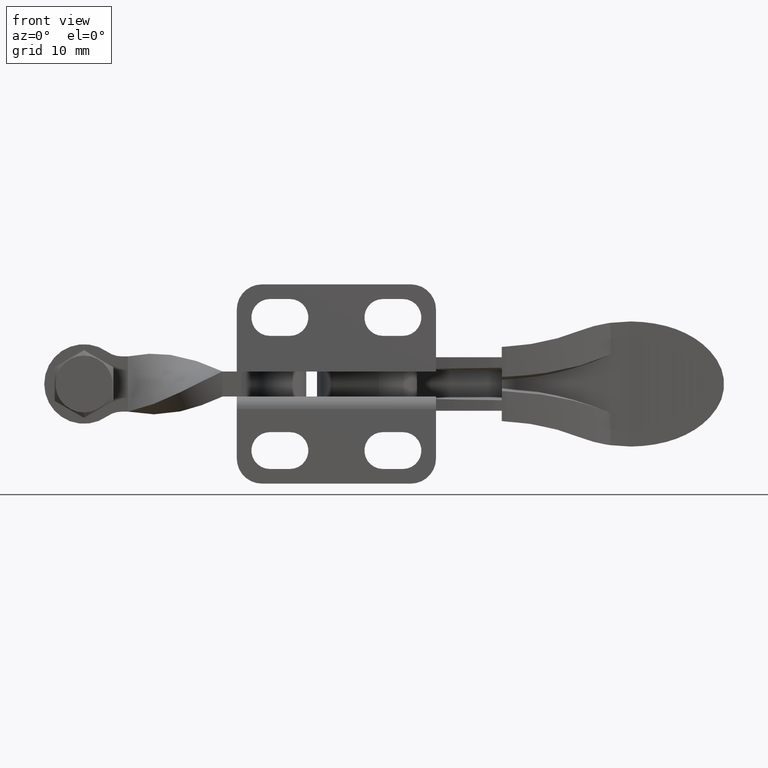
[diagram: clean part render]
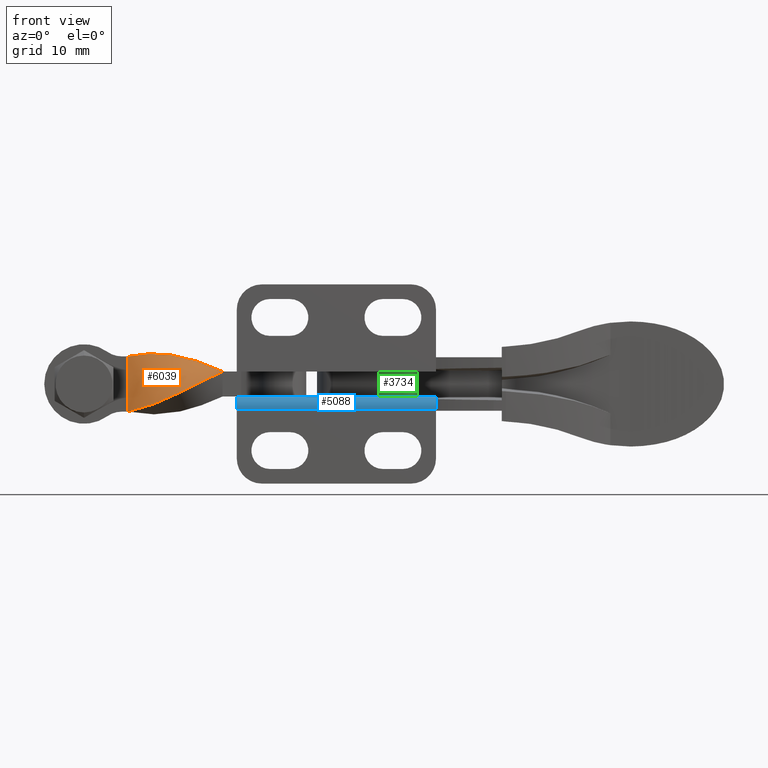
[diagram: same view with three faces highlighted in distinct colors, each labeled with its STEP entity id]
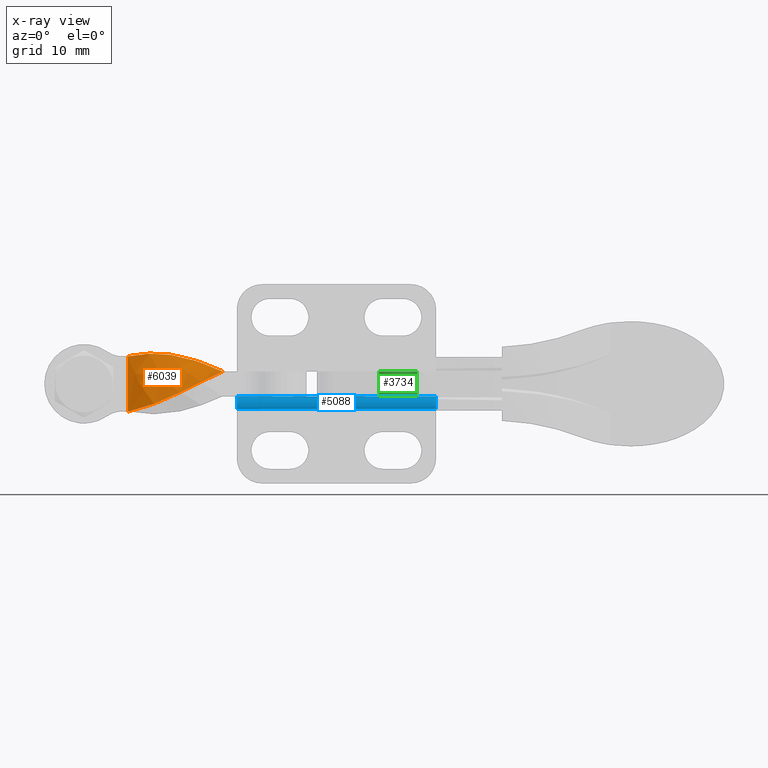
[diagram: x-ray of the same camera — body ghosted, the three highlighted faces saturated]
A machine part, front view with three faces highlighted in distinct colors.
The next image is the same camera in x-ray (body ghosted, the three faces saturated) — at least one of them is partly hidden behind the body in this view.
Their STEP definitions:

[orange] entity #6039 — the highlighted face is a freeform B-spline surface patch.
#232 = B_SPLINE_CURVE_WITH_KNOTS ( 'NONE', 3,
 ( #1954, #1953, #1930, #1920, #1907, #1896, #1874, #1863, #1860, #1841, #1825, #1816 ),
 .UNSPECIFIED., .F., .F.,
 ( 4, 2, 2, 2, 2, 4 ),
 ( 1.176107655477003300E-017, 0.003137570881357479300, 0.004706356322036214600, 0.006275141762714949100, 0.009412712644072415400, 0.01255028352542988300 ),
 .UNSPECIFIED. ) ;
#615 = ORIENTED_EDGE ( 'NONE', *, *, #1675, .T. ) ;
#633 = VERTEX_POINT ( 'NONE', #5395 ) ;
#1664 = DIRECTION ( 'NONE',  ( 1.844089696524623200E-014, -3.069766663088557800E-014, 1.000000000000000000 ) ) ;
#1675 = EDGE_CURVE ( 'NONE', #2549, #8863, #3712, .T. ) ;
#1706 = CARTESIAN_POINT ( 'NONE',  ( -13.00000000000120400, 9.650000000000851200, -1.500000000000020400 ) ) ;
#1766 = VECTOR ( 'NONE', #5197, 1000.000000000000000 ) ;
#1816 = CARTESIAN_POINT ( 'NONE',  ( -13.00000000000118800, 9.650000000000803300, 1.800000000000001600 ) ) ;
#1825 = CARTESIAN_POINT ( 'NONE',  ( -12.05267482808072000, 10.08456625678568300, 1.997525998484649600 ) ) ;
#1841 = CARTESIAN_POINT ( 'NONE',  ( -11.11257841848375700, 10.55394567521773100, 2.104504810054276000 ) ) ;
#1842 = EDGE_LOOP ( 'NONE', ( #615, #5633, #6051, #4313 ) ) ;
#1860 = CARTESIAN_POINT ( 'NONE',  ( -9.219873523480377000, 11.50738911361413300, 2.135939048183236500 ) ) ;
#1863 = CARTESIAN_POINT ( 'NONE',  ( -8.279107791124689100, 11.98545677756314400, 2.057954441462232600 ) ) ;
#1874 = CARTESIAN_POINT ( 'NONE',  ( -6.859475223465255000, 12.65390531683798300, 1.805627150240208100 ) ) ;
#1896 = CARTESIAN_POINT ( 'NONE',  ( -6.387182566774409800, 12.86793346201221600, 1.699669779431467500 ) ) ;
#1907 = CARTESIAN_POINT ( 'NONE',  ( -5.449132271109411900, 13.26909913063780900, 1.449494394320451700 ) ) ;
#1920 = CARTESIAN_POINT ( 'NONE',  ( -4.982074815956774900, 13.45655558814708600, 1.305018109014179300 ) ) ;
#1930 = CARTESIAN_POINT ( 'NONE',  ( -3.581011106703307200, 13.97127823435714200, 0.8218207696098560600 ) ) ;
#1953 = CARTESIAN_POINT ( 'NONE',  ( -2.647264359961663400, 14.25248668137275100, 0.4345383605299235100 ) ) ;
#1954 = CARTESIAN_POINT ( 'NONE',  ( -1.700000000001224800, 14.45000000000086600, 1.517883041479706200E-014 ) ) ;
#1987 = VERTEX_POINT ( 'NONE', #2971 ) ;
#2549 = VERTEX_POINT ( 'NONE', #4084 ) ;
#2923 = EDGE_CURVE ( 'NONE', #8863, #633, #3691, .T. ) ;
#2971 = CARTESIAN_POINT ( 'NONE',  ( -13.00000000000118800, 9.650000000000803300, 1.800000000000001600 ) ) ;
#3632 = FACE_OUTER_BOUND ( 'NONE', #1842, .T. ) ;
#3691 = LINE ( 'NONE', #4893, #1766 ) ;
#3712 = B_SPLINE_CURVE_WITH_KNOTS ( 'NONE', 3,
 ( #6630, #5962, #5161, #6696, #6750, #7238, #7288, #7351, #7383, #7408, #7858, #7910 ),
 .UNSPECIFIED., .F., .F.,
 ( 4, 2, 2, 2, 2, 4 ),
 ( 2.485260050167914900E-017, 0.003137742146331533500, 0.004706613219497285000, 0.006275484292663037500, 0.009413226438994537100, 0.01255096858532604000 ),
 .UNSPECIFIED. ) ;
#4084 = CARTESIAN_POINT ( 'NONE',  ( -13.00000000000124900, 9.650000000000918700, -4.800000000000015800 ) ) ;
#4313 = ORIENTED_EDGE ( 'NONE', *, *, #6325, .F. ) ;
#4331 = EDGE_CURVE ( 'NONE', #633, #1987, #232, .T. ) ;
#4605 = CARTESIAN_POINT ( 'NONE',  ( -1.700000000001224800, 14.51666000000089000, 4.336808689942017700E-016 ) ) ;
#4612 = CARTESIAN_POINT ( 'NONE',  ( -1.700000000001224800, 14.49444000000088900, 4.336808689942017700E-016 ) ) ;
#4627 = CARTESIAN_POINT ( 'NONE',  ( -1.700000000001224800, 14.47222000000088800, 4.336808689942017700E-016 ) ) ;
#4629 = CARTESIAN_POINT ( 'NONE',  ( -1.700000000001224800, 14.45000000000088900, 4.336808689942017700E-016 ) ) ;
#4648 = CARTESIAN_POINT ( 'NONE',  ( -1.700000000001214300, 12.25000000000087000, 2.168404344971008900E-015 ) ) ;
#4662 = CARTESIAN_POINT ( 'NONE',  ( -1.700000000001221400, 10.05000000000087100, 5.637851296924623100E-015 ) ) ;
#4678 = CARTESIAN_POINT ( 'NONE',  ( -1.700000000001221400, 7.850000000000863000, 1.301042606982605300E-015 ) ) ;
#4684 = CARTESIAN_POINT ( 'NONE',  ( -1.700000000001221400, 7.828000000000861800, 1.301042606982605300E-015 ) ) ;
#4685 = CARTESIAN_POINT ( 'NONE',  ( -1.700000000001221400, 7.806000000000862500, 2.168404344971008900E-015 ) ) ;
#4694 = CARTESIAN_POINT ( 'NONE',  ( -1.700000000001221400, 7.784000000000863100, 2.168404344971008900E-015 ) ) ;
#4695 = CARTESIAN_POINT ( 'NONE',  ( -3.313914808615609600, 14.18014405784668200, 0.7553056786699682300 ) ) ;
#4707 = CARTESIAN_POINT ( 'NONE',  ( -3.313918309053011300, 14.15792328882133500, 0.7503223136998723500 ) ) ;
#4714 = CARTESIAN_POINT ( 'NONE',  ( -3.313921809490413000, 14.13570251979598800, 0.7453389487297756900 ) ) ;
#4716 = CARTESIAN_POINT ( 'NONE',  ( -3.313925309927814800, 14.11348175077064000, 0.7403555837596798000 ) ) ;
#4728 = CARTESIAN_POINT ( 'NONE',  ( -3.314271887888428300, 11.91340560964713200, 0.2469531114729205900 ) ) ;
#4729 = CARTESIAN_POINT ( 'NONE',  ( -3.314271887900548800, 9.713401730516345400, -0.2469478241585777200 ) ) ;
#4749 = CARTESIAN_POINT ( 'NONE',  ( -3.313925309929183400, 7.513470121326568200, -0.7403502976457425600 ) ) ;
#4759 = CARTESIAN_POINT ( 'NONE',  ( -3.313921844149470000, 7.491470805234669700, -0.7452843223806140400 ) ) ;
#4770 = CARTESIAN_POINT ( 'NONE',  ( -3.313918378369756600, 7.469471489142771100, -0.7502183471154856300 ) ) ;
#4787 = CARTESIAN_POINT ( 'NONE',  ( -3.313914912590042700, 7.447472173050874400, -0.7551523718503570000 ) ) ;
#4823 = CARTESIAN_POINT ( 'NONE',  ( -6.273715632824323800, 13.07744054786865300, 1.918032490980222200 ) ) ;
#4830 = CARTESIAN_POINT ( 'NONE',  ( -6.273715535448965300, 13.05844025288178900, 1.903939237003659600 ) ) ;
#4832 = CARTESIAN_POINT ( 'NONE',  ( -6.273715438073607800, 13.03943995789492600, 1.889845983027097100 ) ) ;
#4845 = CARTESIAN_POINT ( 'NONE',  ( -6.273715340698250200, 13.02043966290806200, 1.875752729050533600 ) ) ;
#4846 = CARTESIAN_POINT ( 'NONE',  ( -6.273705699573641300, 11.13922233747606700, 0.4803810482027133200 ) ) ;
#4858 = CARTESIAN_POINT ( 'NONE',  ( -6.273705699573469900, 9.257949839676449200, -0.9150479557342291500 ) ) ;
#4867 = CARTESIAN_POINT ( 'NONE',  ( -6.273715340699113500, 7.376746521680788100, -2.310437664855856400 ) ) ;
#4881 = CARTESIAN_POINT ( 'NONE',  ( -6.273715437110369400, 7.357934488500831100, -2.324391561947072700 ) ) ;
#4882 = CARTESIAN_POINT ( 'NONE',  ( -6.273715533521625300, 7.339122455320874900, -2.338345459038289500 ) ) ;
#4893 = CARTESIAN_POINT ( 'NONE',  ( -1.700000000001228300, 11.15000000000084200, 9.107298248878237200E-015 ) ) ;
#4898 = CARTESIAN_POINT ( 'NONE',  ( -6.273715629932881100, 7.320310422140917900, -2.352299356129506200 ) ) ;
#4908 = CARTESIAN_POINT ( 'NONE',  ( -10.04051864744457300, 11.11114871594361000, 2.312099175699223500 ) ) ;
#4910 = CARTESIAN_POINT ( 'NONE',  ( -10.04052022430528800, 11.10200874800710700, 2.291010883411657200 ) ) ;
#4917 = CARTESIAN_POINT ( 'NONE',  ( -10.04052180116600300, 11.09286878007060500, 2.269922591124090800 ) ) ;
#4920 = CARTESIAN_POINT ( 'NONE',  ( -10.04052337802671800, 11.08372881213410100, 2.248834298836524400 ) ) ;
#4928 = CARTESIAN_POINT ( 'NONE',  ( -10.04067950284999900, 10.17878149168828500, 0.1608845673942804500 ) ) ;
#4938 = CARTESIAN_POINT ( 'NONE',  ( -10.04067950285480000, 9.274058688064114300, -1.927032650106235100 ) ) ;
#4939 = CARTESIAN_POINT ( 'NONE',  ( -10.04052337802408200, 8.369111377835448500, -4.014917283246864700 ) ) ;
#4952 = CARTESIAN_POINT ( 'NONE',  ( -10.04052181677577400, 8.360061904733161200, -4.035796129578271200 ) ) ;
#4953 = CARTESIAN_POINT ( 'NONE',  ( -10.04052025552746700, 8.351012431630874000, -4.056674975909678500 ) ) ;
#4965 = CARTESIAN_POINT ( 'NONE',  ( -10.04051869427915900, 8.341962958528588600, -4.077553822241084100 ) ) ;
#4974 = CARTESIAN_POINT ( 'NONE',  ( -12.19298827668889600, 10.02767826041201700, 2.034929297083579900 ) ) ;
#4975 = CARTESIAN_POINT ( 'NONE',  ( -12.19298652635236700, 10.02518641020342800, 2.012709681622170300 ) ) ;
#4986 = CARTESIAN_POINT ( 'NONE',  ( -12.19298477601583900, 10.02269455999484300, 1.990490066160760500 ) ) ;
#4987 = CARTESIAN_POINT ( 'NONE',  ( -12.19298302567931100, 10.02020270978625600, 1.968270450699350900 ) ) ;
#5002 = CARTESIAN_POINT ( 'NONE',  ( -12.19280972503290400, 9.773484867351903900, -0.2316914761728993100 ) ) ;
#5011 = CARTESIAN_POINT ( 'NONE',  ( -12.19280972502755700, 9.526517776437978900, -2.431689536537262600 ) ) ;
#5022 = CARTESIAN_POINT ( 'NONE',  ( -12.19298302568221000, 9.279799933445708900, -4.631723734180219800 ) ) ;
#5023 = CARTESIAN_POINT ( 'NONE',  ( -12.19298475868875700, 9.277332755015786200, -4.653724076156649400 ) ) ;
#5033 = CARTESIAN_POINT ( 'NONE',  ( -12.19298649169530300, 9.274865576585863600, -4.675724418133079000 ) ) ;
#5041 = CARTESIAN_POINT ( 'NONE',  ( -12.19298822470185000, 9.272398398155941000, -4.697724760109508700 ) ) ;
#5043 = CARTESIAN_POINT ( 'NONE',  ( -13.00000000000123800, 9.650000000000853000, 1.866660000000008200 ) ) ;
#5054 = CARTESIAN_POINT ( 'NONE',  ( -13.00000000000123800, 9.650000000000853000, 1.844440000000007400 ) ) ;
#5064 = CARTESIAN_POINT ( 'NONE',  ( -13.00000000000123800, 9.650000000000853000, 1.822220000000007700 ) ) ;
#5072 = CARTESIAN_POINT ( 'NONE',  ( -13.00000000000123800, 9.650000000000853000, 1.800000000000006900 ) ) ;
#5085 = CARTESIAN_POINT ( 'NONE',  ( -13.00000000000123300, 9.650000000000863700, -0.4000000000000119000 ) ) ;
#5086 = CARTESIAN_POINT ( 'NONE',  ( -13.00000000000123100, 9.650000000000869000, -2.600000000000010300 ) ) ;
#5092 = CARTESIAN_POINT ( 'NONE',  ( -13.00000000000123300, 9.650000000000877900, -4.800000000000021100 ) ) ;
#5108 = CARTESIAN_POINT ( 'NONE',  ( -13.00000000000123300, 9.650000000000879700, -4.822000000000020500 ) ) ;
#5119 = CARTESIAN_POINT ( 'NONE',  ( -13.00000000000123300, 9.650000000000879700, -4.866000000000021000 ) ) ;
#5161 = CARTESIAN_POINT ( 'NONE',  ( -11.11935428694011600, 8.827254336849662800, -4.321011146179677600 ) ) ;
#5197 = DIRECTION ( 'NONE',  ( -1.801006175791694200E-014, 1.000000000000000000, 6.383782391594650100E-015 ) ) ;
#5237 = CARTESIAN_POINT ( 'NONE',  ( -13.00000000000123300, 9.650000000000879700, -4.844000000000020700 ) ) ;
#5395 = CARTESIAN_POINT ( 'NONE',  ( -1.700000000001224800, 14.45000000000086600, 1.517883041479706200E-014 ) ) ;
#5633 = ORIENTED_EDGE ( 'NONE', *, *, #2923, .T. ) ;
#5764 = B_SPLINE_SURFACE_WITH_KNOTS ( 'NONE', 3, 3, ( 
 ( #5119, #5237, #5108, #5092, #5086, #5085, #5072, #5064, #5054, #5043 ),
 ( #5041, #5033, #5023, #5022, #5011, #5002, #4987, #4986, #4975, #4974 ),
 ( #4965, #4953, #4952, #4939, #4938, #4928, #4920, #4917, #4910, #4908 ),
 ( #4898, #4882, #4881, #4867, #4858, #4846, #4845, #4832, #4830, #4823 ),
 ( #4787, #4770, #4759, #4749, #4729, #4728, #4716, #4714, #4707, #4695 ),
 ( #4694, #4685, #4684, #4678, #4662, #4648, #4629, #4627, #4612, #4605 ) ),
 .UNSPECIFIED., .F., .F., .F.,
 ( 4, 1, 1, 4 ),
 ( 4, 3, 3, 4 ),
 ( 0.0000000000000000000, 0.2143042601566431700, 0.5714203288192694100, 1.000000000000000000 ),
 ( -0.01000000000000000000, 0.0000000000000000000, 1.000000000000000000, 1.010100000000000000 ),
 .UNSPECIFIED. ) ;
#5962 = CARTESIAN_POINT ( 'NONE',  ( -12.05272835399740400, 9.215461399753525700, -4.602485162161360500 ) ) ;
#6039 = ADVANCED_FACE ( 'NONE', ( #3632 ), #5764, .T. ) ;
#6051 = ORIENTED_EDGE ( 'NONE', *, *, #4331, .T. ) ;
#6099 = VECTOR ( 'NONE', #1664, 1000.000000000000000 ) ;
#6261 = LINE ( 'NONE', #1706, #6099 ) ;
#6325 = EDGE_CURVE ( 'NONE', #2549, #1987, #6261, .T. ) ;
#6630 = CARTESIAN_POINT ( 'NONE',  ( -13.00000000000124900, 9.650000000000918700, -4.800000000000015800 ) ) ;
#6696 = CARTESIAN_POINT ( 'NONE',  ( -9.717732447013917300, 8.345126206777420600, -3.806555600047469800 ) ) ;
#6697 = CARTESIAN_POINT ( 'NONE',  ( -1.700000000001106800, 7.850000000000793700, 4.336808689942017700E-016 ) ) ;
#6750 = CARTESIAN_POINT ( 'NONE',  ( -9.250446826508595100, 8.201008590127699400, -3.619284415117513600 ) ) ;
#7238 = CARTESIAN_POINT ( 'NONE',  ( -8.312264331220143600, 7.950865030059749600, -3.218193704801564100 ) ) ;
#7288 = CARTESIAN_POINT ( 'NONE',  ( -7.840067152307889300, 7.844537467382693300, -3.003940375415590700 ) ) ;
#7351 = CARTESIAN_POINT ( 'NONE',  ( -6.420843941968981600, 7.591726190198659000, -2.335113220095345300 ) ) ;
#7383 = CARTESIAN_POINT ( 'NONE',  ( -5.479411052724747900, 7.514754041399414500, -1.858273396842962100 ) ) ;
#7408 = CARTESIAN_POINT ( 'NONE',  ( -3.586801920318674100, 7.545936537309956700, -0.9050648930464415500 ) ) ;
#7858 = CARTESIAN_POINT ( 'NONE',  ( -2.647297132265066900, 7.652479848047951400, -0.4345502914641069500 ) ) ;
#7910 = CARTESIAN_POINT ( 'NONE',  ( -1.700000000001106800, 7.850000000000793700, 4.336808689942017700E-016 ) ) ;
#8863 = VERTEX_POINT ( 'NONE', #6697 ) ;

[blue] entity #5088 — the highlighted cylindrical surface (edge-blend (fillet) strip) has radius 1.5 mm, axis along (1, 0, -0).
#29 = EDGE_CURVE ( 'NONE', #3431, #6471, #7243, .T. ) ;
#298 = CARTESIAN_POINT ( 'NONE',  ( -2.000395132366341000E-016, 1.499999999999999300, -2.999999999995932600 ) ) ;
#366 = ORIENTED_EDGE ( 'NONE', *, *, #8028, .T. ) ;
#793 = AXIS2_PLACEMENT_3D ( 'NONE', #9112, #8644, #9030 ) ;
#864 = CARTESIAN_POINT ( 'NONE',  ( -3.875765569342796500E-016, 5.086103769803080300E-016, -4.499999999995933900 ) ) ;
#866 = AXIS2_PLACEMENT_3D ( 'NONE', #7687, #7658, #7643 ) ;
#871 = LINE ( 'NONE', #1093, #9213 ) ;
#999 = EDGE_LOOP ( 'NONE', ( #5513, #1795, #5954, #366 ) ) ;
#1051 = VERTEX_POINT ( 'NONE', #2755 ) ;
#1059 = DIRECTION ( 'NONE',  ( -1.000000000000000000, -4.523744075274872600E-032, 1.250246957984303300E-016 ) ) ;
#1093 = CARTESIAN_POINT ( 'NONE',  ( 18.30000000000060800, 1.499999999999998900, -2.999999999995935300 ) ) ;
#1561 = DIRECTION ( 'NONE',  ( 1.000000000000000000, 4.523744075274872600E-032, -1.250246957984303300E-016 ) ) ;
#1795 = ORIENTED_EDGE ( 'NONE', *, *, #8765, .T. ) ;
#2755 = CARTESIAN_POINT ( 'NONE',  ( 23.80000000000105200, 1.499999999999999300, -2.999999999995935700 ) ) ;
#3431 = VERTEX_POINT ( 'NONE', #298 ) ;
#3435 = CARTESIAN_POINT ( 'NONE',  ( 23.80000000000105200, 5.086103769803096000E-016, -4.499999999995935700 ) ) ;
#3472 = AXIS2_PLACEMENT_3D ( 'NONE', #5481, #5339, #5610 ) ;
#4207 = VERTEX_POINT ( 'NONE', #3435 ) ;
#5088 = ADVANCED_FACE ( 'NONE', ( #8152 ), #6984, .T. ) ;
#5339 = DIRECTION ( 'NONE',  ( 1.000000000000000000, 4.523744075274872600E-032, -1.250246957984303300E-016 ) ) ;
#5379 = CIRCLE ( 'NONE', #866, 1.499999999999999600 ) ;
#5481 = CARTESIAN_POINT ( 'NONE',  ( -3.875765569342796000E-016, 1.500000000000000400, -4.499999999995933000 ) ) ;
#5507 = CARTESIAN_POINT ( 'NONE',  ( -3.875765569342796500E-016, 5.086103769803080300E-016, -4.499999999995933900 ) ) ;
#5513 = ORIENTED_EDGE ( 'NONE', *, *, #29, .T. ) ;
#5610 = DIRECTION ( 'NONE',  ( 1.250246957984303300E-016, -7.228014483236696600E-016, 1.000000000000000000 ) ) ;
#5954 = ORIENTED_EDGE ( 'NONE', *, *, #7282, .T. ) ;
#6471 = VERTEX_POINT ( 'NONE', #5507 ) ;
#6984 = CYLINDRICAL_SURFACE ( 'NONE', #793, 1.500000000000000000 ) ;
#7243 = CIRCLE ( 'NONE', #3472, 1.500000000000000000 ) ;
#7282 = EDGE_CURVE ( 'NONE', #4207, #1051, #5379, .T. ) ;
#7537 = VECTOR ( 'NONE', #1561, 1000.000000000000000 ) ;
#7643 = DIRECTION ( 'NONE',  ( 0.0000000000000000000, 1.590163186312073700E-015, -1.000000000000000000 ) ) ;
#7658 = DIRECTION ( 'NONE',  ( -1.000000000000000000, -4.523744075274872600E-032, 1.250246957984303300E-016 ) ) ;
#7687 = CARTESIAN_POINT ( 'NONE',  ( 23.80000000000105200, 1.500000000000000400, -4.499999999995935700 ) ) ;
#7745 = LINE ( 'NONE', #864, #7537 ) ;
#8028 = EDGE_CURVE ( 'NONE', #1051, #3431, #871, .T. ) ;
#8152 = FACE_OUTER_BOUND ( 'NONE', #999, .T. ) ;
#8644 = DIRECTION ( 'NONE',  ( 1.000000000000000000, 4.523744075274872600E-032, -1.250246957984303300E-016 ) ) ;
#8765 = EDGE_CURVE ( 'NONE', #6471, #4207, #7745, .T. ) ;
#9030 = DIRECTION ( 'NONE',  ( 1.250246957984303300E-016, -7.228014483236696600E-016, 1.000000000000000000 ) ) ;
#9112 = CARTESIAN_POINT ( 'NONE',  ( -3.875765569342796000E-016, 1.500000000000000400, -4.499999999995933000 ) ) ;
#9213 = VECTOR ( 'NONE', #1059, 1000.000000000000000 ) ;

[green] entity #3734 — the highlighted cylindrical surface (edge-blend (fillet) strip) has radius 3.25 mm, axis along (-0, -0, -1).
#403 = AXIS2_PLACEMENT_3D ( 'NONE', #4857, #4835, #4821 ) ;
#409 = VERTEX_POINT ( 'NONE', #7787 ) ;
#424 = VERTEX_POINT ( 'NONE', #8556 ) ;
#434 = ORIENTED_EDGE ( 'NONE', *, *, #7661, .F. ) ;
#474 = CIRCLE ( 'NONE', #3321, 3.250000000000019500 ) ;
#827 = LINE ( 'NONE', #7447, #4925 ) ;
#875 = EDGE_CURVE ( 'NONE', #424, #3630, #474, .T. ) ;
#1084 = ORIENTED_EDGE ( 'NONE', *, *, #875, .T. ) ;
#1232 = CARTESIAN_POINT ( 'NONE',  ( 19.63456227617241700, 10.76335005205581700, -4.336808689942017700E-016 ) ) ;
#1329 = CIRCLE ( 'NONE', #403, 3.250000000000019500 ) ;
#1489 = VERTEX_POINT ( 'NONE', #1232 ) ;
#1506 = CARTESIAN_POINT ( 'NONE',  ( 18.30000000000060100, 7.800000000000001600, -2.999999999999999600 ) ) ;
#1518 = DIRECTION ( 'NONE',  ( 2.282561900879937500E-031, 2.641906209935896600E-031, 1.000000000000000000 ) ) ;
#1522 = DIRECTION ( 'NONE',  ( 0.9118000160171704200, -0.4106345465144010100, 0.0000000000000000000 ) ) ;
#1549 = FACE_OUTER_BOUND ( 'NONE', #5431, .T. ) ;
#1584 = LINE ( 'NONE', #8227, #9002 ) ;
#2374 = AXIS2_PLACEMENT_3D ( 'NONE', #5508, #6095, #5387 ) ;
#2426 = CARTESIAN_POINT ( 'NONE',  ( 19.63456227617241700, 10.76335005205581700, -2.999999999999999600 ) ) ;
#3321 = AXIS2_PLACEMENT_3D ( 'NONE', #1506, #1518, #1522 ) ;
#3630 = VERTEX_POINT ( 'NONE', #2426 ) ;
#3734 = ADVANCED_FACE ( 'NONE', ( #1549 ), #4798, .T. ) ;
#4798 = CYLINDRICAL_SURFACE ( 'NONE', #2374, 3.250000000000020900 ) ;
#4821 = DIRECTION ( 'NONE',  ( 0.9118000160171704200, -0.4106345465144010100, -3.970378654582892800E-030 ) ) ;
#4835 = DIRECTION ( 'NONE',  ( 2.282561900879937500E-031, 2.641906209935896600E-031, 1.000000000000000000 ) ) ;
#4857 = CARTESIAN_POINT ( 'NONE',  ( 18.30000000000060800, 7.800000000000000700, -4.336808689942017700E-016 ) ) ;
#4925 = VECTOR ( 'NONE', #7095, 1000.000000000000000 ) ;
#5387 = DIRECTION ( 'NONE',  ( -0.9118000160171705300, 0.4106345465144007900, 3.955563808856836200E-030 ) ) ;
#5431 = EDGE_LOOP ( 'NONE', ( #1084, #6216, #434, #6431 ) ) ;
#5508 = CARTESIAN_POINT ( 'NONE',  ( 18.30000000000060800, 7.800000000000000700, -4.336808689942017700E-016 ) ) ;
#6095 = DIRECTION ( 'NONE',  ( -2.282561900879937500E-031, -2.641906209935896600E-031, -1.000000000000000000 ) ) ;
#6216 = ORIENTED_EDGE ( 'NONE', *, *, #6924, .F. ) ;
#6431 = ORIENTED_EDGE ( 'NONE', *, *, #7256, .T. ) ;
#6924 = EDGE_CURVE ( 'NONE', #1489, #3630, #827, .T. ) ;
#7095 = DIRECTION ( 'NONE',  ( -2.282561900879937500E-031, -2.641906209935896600E-031, -1.000000000000000000 ) ) ;
#7256 = EDGE_CURVE ( 'NONE', #409, #424, #1584, .T. ) ;
#7447 = CARTESIAN_POINT ( 'NONE',  ( 19.63456227617241700, 10.76335005205581700, -4.336808689942017700E-016 ) ) ;
#7661 = EDGE_CURVE ( 'NONE', #409, #1489, #1329, .T. ) ;
#7787 = CARTESIAN_POINT ( 'NONE',  ( 16.96543772382879200, 4.836649947944176000, -4.336808689942017700E-016 ) ) ;
#8205 = DIRECTION ( 'NONE',  ( -2.282561900879937500E-031, -2.641906209935896600E-031, -1.000000000000000000 ) ) ;
#8227 = CARTESIAN_POINT ( 'NONE',  ( 16.96543772382879200, 4.836649947944176000, -4.336808689942017700E-016 ) ) ;
#8556 = CARTESIAN_POINT ( 'NONE',  ( 16.96543772382879200, 4.836649947944176000, -2.999999999999999100 ) ) ;
#9002 = VECTOR ( 'NONE', #8205, 1000.000000000000000 ) ;